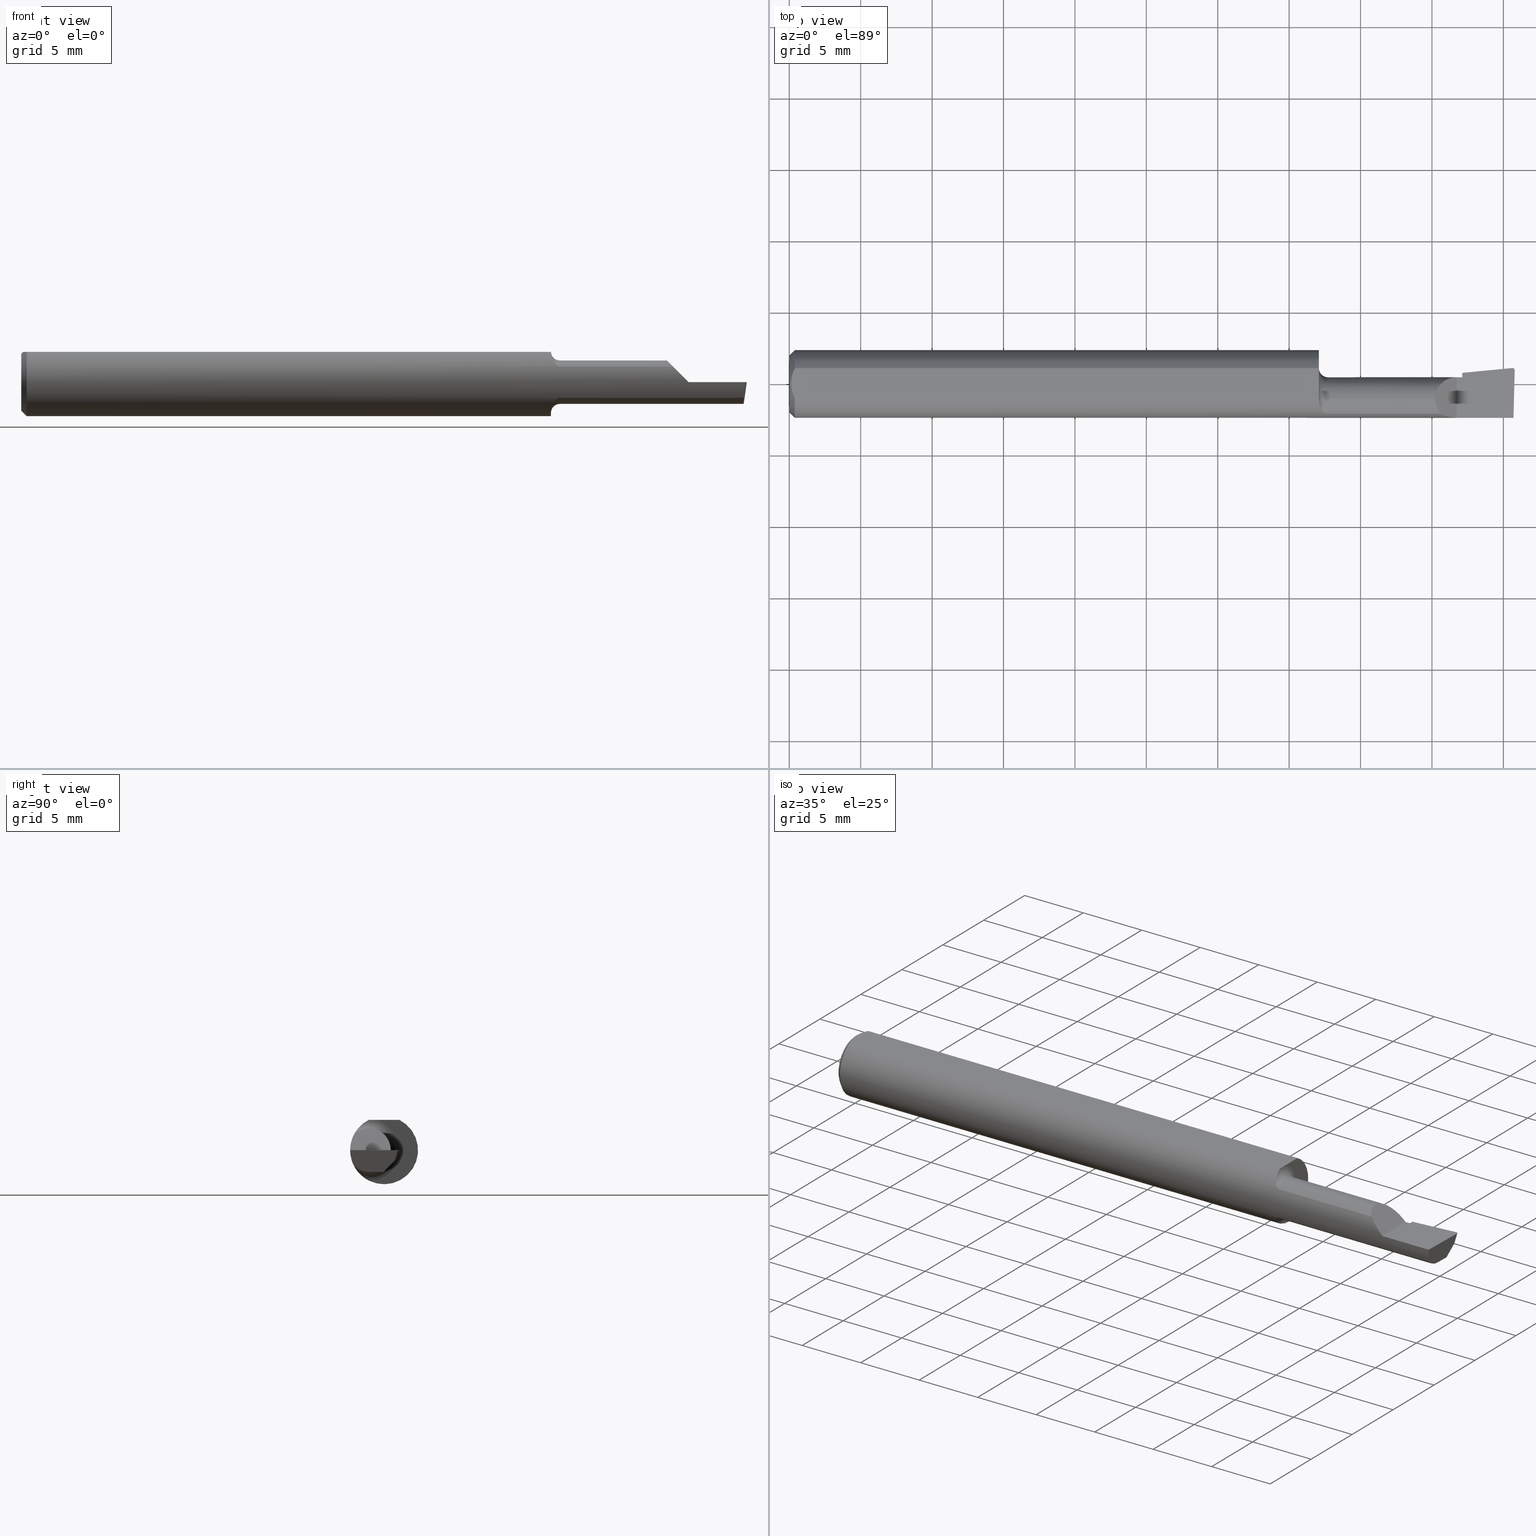
[diagram: canonical four-view strip — front | top / right | iso, engineering-drawing reading convention]
A machine part, canonical four-view strip (front | top / right | iso — engineering-drawing reading convention). The complete STEP part file that produces these views, byte-faithful:
ISO-10303-21;
HEADER;
FILE_DESCRIPTION (( 'STEP AP214' ),
    '1' );
FILE_NAME ('B140500R.STEP',
    '2020-05-08T22:40:26',
    ( '' ),
    ( '' ),
    'SwSTEP 2.0',
    'SolidWorks 2018',
    '' );
FILE_SCHEMA (( 'AUTOMOTIVE_DESIGN' ));
ENDSEC;

DATA;
#1 = EDGE_LOOP ( 'NONE', ( #714, #342, #424, #492 ) ) ;
#2 = CARTESIAN_POINT ( 'NONE',  ( 1.990393312970557327, -0.04150000000000000216, -0.05990000000000000185 ) ) ;
#3 = CARTESIAN_POINT ( 'NONE',  ( 0.005000000000000236026, 1.025183009042025117E-17, 0.08360000000000000764 ) ) ;
#4 = B_SPLINE_CURVE_WITH_KNOTS ( 'NONE', 3,
 ( #148, #225, #497, #697 ),
 .UNSPECIFIED., .F., .F.,
 ( 4, 4 ),
 ( 0.001735506710063806739, 0.001793010945052110183 ),
 .UNSPECIFIED. ) ;
#5 =( LENGTH_UNIT ( ) NAMED_UNIT ( * ) SI_UNIT ( $, .METRE. ) );
#6 = DIRECTION ( 'NONE',  ( 0.0000000000000000000, 0.0000000000000000000, 1.000000000000000000 ) ) ;
#7 = ORIENTED_EDGE ( 'NONE', *, *, #9, .F. ) ;
#8 = CARTESIAN_POINT ( 'NONE',  ( 0.0000000000000000000, 0.0000000000000000000, 0.0000000000000000000 ) ) ;
#9 = EDGE_CURVE ( 'NONE', #543, #617, #201, .T. ) ;
#10 = AXIS2_PLACEMENT_3D ( 'NONE', #421, #632, #232 ) ;
#11 = CARTESIAN_POINT ( 'NONE',  ( 1.990322576363892759, -0.07176861043311237587, -0.05402281578110740279 ) ) ;
#12 = ORIENTED_EDGE ( 'NONE', *, *, #633, .T. ) ;
#13 = EDGE_CURVE ( 'NONE', #182, #440, #228, .T. ) ;
#14 = CARTESIAN_POINT ( 'NONE',  ( 0.005000000000000228220, -0.007328888879231052964, 0.08360000000000000764 ) ) ;
#15 = CARTESIAN_POINT ( 'NONE',  ( 1.796877448822106649, -0.08307469879518074307, 0.04312255117789294545 ) ) ;
#16 = ORIENTED_EDGE ( 'NONE', *, *, #196, .F. ) ;
#17 = CARTESIAN_POINT ( 'NONE',  ( 1.840000000000000080, 0.01839999999999989908, 1.959434878635762025E-17 ) ) ;
#18 = DIRECTION ( 'NONE',  ( 0.0000000000000000000, 0.0000000000000000000, 1.000000000000000000 ) ) ;
#19 = CARTESIAN_POINT ( 'NONE',  ( 5.659797890829555466E-31, -0.09359999999999998876, 1.030335658007946046E-15 ) ) ;
#20 = DIRECTION ( 'NONE',  ( -0.0000000000000000000, 1.000000000000000000, 1.224646799147353207E-16 ) ) ;
#21 = TOROIDAL_SURFACE ( 'NONE', #486, 0.08489999999999996161, 0.02500000000000007425 ) ;
#22 = CARTESIAN_POINT ( 'NONE',  ( 0.01206089165507025739, -0.03555991978469312531, 0.08360000000000000764 ) ) ;
#23 =( LENGTH_UNIT ( ) NAMED_UNIT ( * ) SI_UNIT ( $, .METRE. ) );
#24 = FACE_OUTER_BOUND ( 'NONE', #572, .T. ) ;
#25 = APPLICATION_CONTEXT ( 'automotive_design' ) ;
#26 = ORIENTED_EDGE ( 'NONE', *, *, #412, .T. ) ;
#27 = UNCERTAINTY_MEASURE_WITH_UNIT (LENGTH_MEASURE( 1.000000000000000082E-05 ), #32, 'distance_accuracy_value', 'NONE');
#28 = VERTEX_POINT ( 'NONE', #280 ) ;
#29 = SURFACE_SIDE_STYLE ('',( #198 ) ) ;
#30 = VECTOR ( 'NONE', #584, 39.37007874015748854 ) ;
#31 = ORIENTED_EDGE ( 'NONE', *, *, #127, .F. ) ;
#32 =( CONVERSION_BASED_UNIT ( 'INCH', #86 ) LENGTH_UNIT ( ) NAMED_UNIT ( #266 ) );
#33 = ORIENTED_EDGE ( 'NONE', *, *, #196, .T. ) ;
#34 = AXIS2_PLACEMENT_3D ( 'NONE', #652, #301, #703 ) ;
#35 = AXIS2_PLACEMENT_3D ( 'NONE', #718, #236, #447 ) ;
#36 = FACE_OUTER_BOUND ( 'NONE', #1, .T. ) ;
#37 = DIRECTION ( 'NONE',  ( -1.000000000000000000, -0.0000000000000000000, -0.0000000000000000000 ) ) ;
#38 = ORIENTED_EDGE ( 'NONE', *, *, #723, .F. ) ;
#39 = ORIENTED_EDGE ( 'NONE', *, *, #465, .T. ) ;
#40 = EDGE_CURVE ( 'NONE', #133, #534, #540, .T. ) ;
#41 = CARTESIAN_POINT ( 'NONE',  ( 0.0000000000000000000, -0.04150000000000000216, 0.0000000000000000000 ) ) ;
#42 = CARTESIAN_POINT ( 'NONE',  ( 1.484999999999999876, -0.04149999999999998829, -0.08489999999999996161 ) ) ;
#43 = AXIS2_PLACEMENT_3D ( 'NONE', #111, #144, #268 ) ;
#44 = ADVANCED_FACE ( 'NONE', ( #97 ), #681, .T. ) ;
#45 = CARTESIAN_POINT ( 'NONE',  ( 1.854999999999999982, -0.2500000000000000555, 1.135460985248596835E-17 ) ) ;
#46 = CARTESIAN_POINT ( 'NONE',  ( 1.824917075065774830, -0.09360000000000001652, 0.01508292493422502302 ) ) ;
#47 = ORIENTED_EDGE ( 'NONE', *, *, #705, .F. ) ;
#48 = DIRECTION ( 'NONE',  ( 1.000000000000000000, 0.0000000000000000000, 0.0000000000000000000 ) ) ;
#49 = AXIS2_PLACEMENT_3D ( 'NONE', #586, #711, #662 ) ;
#50 = CARTESIAN_POINT ( 'NONE',  ( 0.005000000000000223883, 0.007308422719211823959, 0.08360000000000000764 ) ) ;
#51 = CARTESIAN_POINT ( 'NONE',  ( 1.484999999999999876, -0.08307469879518063205, 0.04312255117789300790 ) ) ;
#52 = COLOUR_RGB ( '',0.5019607843137254832, 0.5019607843137254832, 0.5019607843137254832 ) ;
#53 = ADVANCED_FACE ( 'NONE', ( #666 ), #246, .T. ) ;
#54 = VERTEX_POINT ( 'NONE', #675 ) ;
#55 = DIRECTION ( 'NONE',  ( 0.0000000000000000000, 0.0000000000000000000, 1.000000000000000000 ) ) ;
#56 =( CONVERSION_BASED_UNIT ( 'INCH', #157 ) LENGTH_UNIT ( ) NAMED_UNIT ( #389 ) );
#57 = AXIS2_PLACEMENT_3D ( 'NONE', #129, #444, #203 ) ;
#58 = CARTESIAN_POINT ( 'NONE',  ( 1.993310817358676212, 0.04374616680637213179, -6.832789351565719796E-17 ) ) ;
#59 = CARTESIAN_POINT ( 'NONE',  ( 1.460033804492674392, -0.04179756391332130339, 0.08360000000000000764 ) ) ;
#60 = ORIENTED_EDGE ( 'NONE', *, *, #429, .F. ) ;
#61 = VECTOR ( 'NONE', #321, 39.37007874015748143 ) ;
#62 = CARTESIAN_POINT ( 'NONE',  ( 0.005000000000000236026, 1.025183009042025117E-17, 0.08360000000000000764 ) ) ;
#63 = PLANE ( 'NONE',  #657 ) ;
#64 = DIRECTION ( 'NONE',  ( -1.000000000000000000, -0.0000000000000000000, -0.0000000000000000000 ) ) ;
#65 = DIRECTION ( 'NONE',  ( 0.0000000000000000000, 0.0000000000000000000, 1.000000000000000000 ) ) ;
#66 = ORIENTED_EDGE ( 'NONE', *, *, #215, .T. ) ;
#67 = SURFACE_STYLE_USAGE ( .BOTH. , #577 ) ;
#68 = ORIENTED_EDGE ( 'NONE', *, *, #155, .F. ) ;
#69 = CARTESIAN_POINT ( 'NONE',  ( 0.01203648650249650523, 0.03550565407121123590, 0.08360000000000000764 ) ) ;
#70 = DIRECTION ( 'NONE',  ( -5.493159289247764363E-16, 0.0000000000000000000, -1.000000000000000000 ) ) ;
#71 = CARTESIAN_POINT ( 'NONE',  ( 0.009492654797564337166, 0.02859466010166625619, 0.08359999999999997988 ) ) ;
#72 = DIRECTION ( 'NONE',  ( 0.9953961983671787417, 0.09584575252022466130, -5.467869873542577569E-16 ) ) ;
#73 = LINE ( 'NONE', #163, #90 ) ;
#74 = ORIENTED_EDGE ( 'NONE', *, *, #166, .F. ) ;
#75 = CIRCLE ( 'NONE', #94, 0.09360000000000001652 ) ;
#76 = EDGE_LOOP ( 'NONE', ( #158, #371, #190, #136, #597 ) ) ;
#77 = CARTESIAN_POINT ( 'NONE',  ( 0.01499999999999999598, 0.04209513035969837669, 0.08360000000000000764 ) ) ;
#78 = CARTESIAN_POINT ( 'NONE',  ( 1.990282674007080033, 0.03732143363315359313, -0.02000000000000000042 ) ) ;
#79 = EDGE_CURVE ( 'NONE', #565, #226, #490, .T. ) ;
#80 = CARTESIAN_POINT ( 'NONE',  ( 1.840000000000000080, -0.09360000000000005815, 1.959434878635762025E-17 ) ) ;
#81 = AXIS2_PLACEMENT_3D ( 'NONE', #324, #356, #218 ) ;
#82 = DIRECTION ( 'NONE',  ( 0.0000000000000000000, 0.6963153109074926572, 0.7177360153954946975 ) ) ;
#83 = PLANE ( 'NONE',  #293 ) ;
#84 =( BOUNDED_CURVE ( )  B_SPLINE_CURVE ( 3, ( #78, #292, #109, #445 ),
 .UNSPECIFIED., .F., .T. ) 
 B_SPLINE_CURVE_WITH_KNOTS ( ( 4, 4 ),
 ( 3.064097098354582105, 3.156599629463105128 ),
 .UNSPECIFIED. ) 
 CURVE ( )  GEOMETRIC_REPRESENTATION_ITEM ( )  RATIONAL_B_SPLINE_CURVE ( ( 1.000000000000000000, 0.9992870672494019724, 0.9992870672494019724, 1.000000000000000000 ) ) 
 REPRESENTATION_ITEM ( '' )  );
#85 = ORIENTED_EDGE ( 'NONE', *, *, #498, .T. ) ;
#86 = LENGTH_MEASURE_WITH_UNIT ( LENGTH_MEASURE( 0.02539999999999999897 ), #23 );
#87 = EDGE_LOOP ( 'NONE', ( #367, #601, #108 ) ) ;
#88 = EDGE_CURVE ( 'NONE', #334, #133, #205, .T. ) ;
#89 = EDGE_CURVE ( 'NONE', #570, #720, #432, .T. ) ;
#90 = VECTOR ( 'NONE', #503, 39.37007874015748143 ) ;
#91 = ORIENTED_EDGE ( 'NONE', *, *, #88, .F. ) ;
#92 = FACE_OUTER_BOUND ( 'NONE', #437, .T. ) ;
#93 = EDGE_LOOP ( 'NONE', ( #38, #74, #85, #145, #122 ) ) ;
#94 = AXIS2_PLACEMENT_3D ( 'NONE', #648, #455, #18 ) ;
#95 = CIRCLE ( 'NONE', #728, 0.05989999999999995328 ) ;
#96 = ADVANCED_FACE ( 'NONE', ( #214 ), #21, .F. ) ;
#97 = FACE_OUTER_BOUND ( 'NONE', #76, .T. ) ;
#98 = EDGE_CURVE ( 'NONE', #440, #153, #161, .T. ) ;
#99 = VERTEX_POINT ( 'NONE', #499 ) ;
#100 = ADVANCED_FACE ( 'NONE', ( #366 ), #311, .T. ) ;
#101 = CARTESIAN_POINT ( 'NONE',  ( 1.460033822879743592, -0.04149999999999999523, 0.08360000000000000764 ) ) ;
#102 = CARTESIAN_POINT ( 'NONE',  ( 0.0000000000000000000, 0.0000000000000000000, 0.0000000000000000000 ) ) ;
#103 = VERTEX_POINT ( 'NONE', #284 ) ;
#104 = DIRECTION ( 'NONE',  ( -1.000000000000000000, -0.0000000000000000000, -0.0000000000000000000 ) ) ;
#105 = ORIENTED_EDGE ( 'NONE', *, *, #169, .F. ) ;
#106 = CARTESIAN_POINT ( 'NONE',  ( 1.991365359011875169, -0.08307469879518077083, -0.04312255117789289688 ) ) ;
#107 = ORIENTED_EDGE ( 'NONE', *, *, #262, .T. ) ;
#108 = ORIENTED_EDGE ( 'NONE', *, *, #670, .T. ) ;
#109 = CARTESIAN_POINT ( 'NONE',  ( 1.990684883739910260, 0.03734591258203671243, -0.02001468779820768720 ) ) ;
#110 = CARTESIAN_POINT ( 'NONE',  ( 1.854999999999999982, 0.03726901833842542755, -0.006627062419125364159 ) ) ;
#111 = CARTESIAN_POINT ( 'NONE',  ( 0.0000000000000000000, 0.0000000000000000000, 0.0000000000000000000 ) ) ;
#112 = AXIS2_PLACEMENT_3D ( 'NONE', #338, #641, #395 ) ;
#113 = VERTEX_POINT ( 'NONE', #263 ) ;
#114 = CARTESIAN_POINT ( 'NONE',  ( 1.484999999999999876, -0.04149999999999999523, 0.0000000000000000000 ) ) ;
#115 = ORIENTED_EDGE ( 'NONE', *, *, #40, .T. ) ;
#116 =( BOUNDED_CURVE ( )  B_SPLINE_CURVE ( 3, ( #197, #699, #640, #682 ),
 .UNSPECIFIED., .F., .T. ) 
 B_SPLINE_CURVE_WITH_KNOTS ( ( 4, 4 ),
 ( 5.516060229395658432, 6.283185307179586232 ),
 .UNSPECIFIED. ) 
 CURVE ( )  GEOMETRIC_REPRESENTATION_ITEM ( )  RATIONAL_B_SPLINE_CURVE ( ( 1.000000000000000000, 0.9515582177473689285, 0.9515582177473689285, 1.000000000000000000 ) ) 
 REPRESENTATION_ITEM ( '' )  );
#117 = CARTESIAN_POINT ( 'NONE',  ( 1.669999999999999929, -0.08307469879518077083, 0.04312255117789289688 ) ) ;
#118 = VECTOR ( 'NONE', #650, 39.37007874015748143 ) ;
#119 = PLANE ( 'NONE',  #374 ) ;
#120 = VECTOR ( 'NONE', #562, 39.37007874015748143 ) ;
#121 = DIRECTION ( 'NONE',  ( -1.000000000000000000, -0.0000000000000000000, -0.0000000000000000000 ) ) ;
#122 = ORIENTED_EDGE ( 'NONE', *, *, #278, .T. ) ;
#123 = CARTESIAN_POINT ( 'NONE',  ( 2.000000000000000000, -0.04150000000000000216, -0.05990000000000000185 ) ) ;
#124 =( NAMED_UNIT ( * ) PLANE_ANGLE_UNIT ( ) SI_UNIT ( $, .RADIAN. ) );
#125 = CARTESIAN_POINT ( 'NONE',  ( 1.854999999999999982, 0.03043808801135671968, 0.0000000000000000000 ) ) ;
#126 = DIRECTION ( 'NONE',  ( 0.0000000000000000000, 0.0000000000000000000, -1.000000000000000000 ) ) ;
#127 = EDGE_CURVE ( 'NONE', #534, #513, #456, .T. ) ;
#128 = ORIENTED_EDGE ( 'NONE', *, *, #602, .T. ) ;
#129 = CARTESIAN_POINT ( 'NONE',  ( 1.840000000000000080, -0.2500000000000000555, 1.959434878635762025E-17 ) ) ;
#130 = DIRECTION ( 'NONE',  ( -1.000000000000000000, -0.0000000000000000000, -0.0000000000000000000 ) ) ;
#131 = PRESENTATION_STYLE_ASSIGNMENT (( #67 ) ) ;
#132 = CARTESIAN_POINT ( 'NONE',  ( 1.854999999999999982, -0.01441399783868786352, -0.05990000000000000185 ) ) ;
#133 = VERTEX_POINT ( 'NONE', #361 ) ;
#134 = DIRECTION ( 'NONE',  ( 0.0000000000000000000, 0.2936076258024065688, 0.9559260233253794592 ) ) ;
#135 = VERTEX_POINT ( 'NONE', #3 ) ;
#136 = ORIENTED_EDGE ( 'NONE', *, *, #615, .T. ) ;
#137 = CARTESIAN_POINT ( 'NONE',  ( 1.990707973439665102, 0.03071856456557511481, -0.01939893992993005009 ) ) ;
#138 = ORIENTED_EDGE ( 'NONE', *, *, #462, .F. ) ;
#139 = CARTESIAN_POINT ( 'NONE',  ( 1.810264301876177928, -0.09002356847881788637, 0.02973569812382168345 ) ) ;
#140 = CARTESIAN_POINT ( 'NONE',  ( 1.999806390372779408, 0.03700634663142104291, -6.825079363098308080E-17 ) ) ;
#141 = FILL_AREA_STYLE ('',( #529 ) ) ;
#142 = DIRECTION ( 'NONE',  ( -0.02617694830786378504, -0.9996573249755575929, 0.0000000000000000000 ) ) ;
#143 = VECTOR ( 'NONE', #177, 39.37007874015748143 ) ;
#144 = DIRECTION ( 'NONE',  ( -1.000000000000000000, -0.0000000000000000000, -0.0000000000000000000 ) ) ;
#145 = ORIENTED_EDGE ( 'NONE', *, *, #306, .T. ) ;
#146 = CARTESIAN_POINT ( 'NONE',  ( 1.460121283746727894, -0.04659318327468391779, -0.08137765652544189099 ) ) ;
#147 = EDGE_CURVE ( 'NONE', #411, #570, #659, .T. ) ;
#148 = CARTESIAN_POINT ( 'NONE',  ( 1.460020127471512996, -0.04149999999999998829, -0.08389702020930184245 ) ) ;
#149 = AXIS2_PLACEMENT_3D ( 'NONE', #8, #192, #527 ) ;
#150 = CIRCLE ( 'NONE', #35, 0.05990000000000000185 ) ;
#151 = ORIENTED_EDGE ( 'NONE', *, *, #215, .F. ) ;
#152 = EDGE_LOOP ( 'NONE', ( #575, #294, #171, #446 ) ) ;
#153 = VERTEX_POINT ( 'NONE', #726 ) ;
#154 = EDGE_CURVE ( 'NONE', #661, #133, #84, .T. ) ;
#155 = EDGE_CURVE ( 'NONE', #440, #277, #707, .T. ) ;
#156 = VECTOR ( 'NONE', #134, 39.37007874015748854 ) ;
#157 = LENGTH_MEASURE_WITH_UNIT ( LENGTH_MEASURE( 0.02539999999999999897 ), #5 );
#158 = ORIENTED_EDGE ( 'NONE', *, *, #147, .F. ) ;
#159 =( BOUNDED_CURVE ( )  B_SPLINE_CURVE ( 3, ( #353, #58, #176, #165 ),
 .UNSPECIFIED., .F., .T. ) 
 B_SPLINE_CURVE_WITH_KNOTS ( ( 4, 4 ),
 ( 3.511516179717707686, 3.604018710826265792 ),
 .UNSPECIFIED. ) 
 CURVE ( )  GEOMETRIC_REPRESENTATION_ITEM ( )  RATIONAL_B_SPLINE_CURVE ( ( 1.000000000000000000, 0.9992870672494014173, 0.9992870672494014173, 1.000000000000000000 ) ) 
 REPRESENTATION_ITEM ( '' )  );
#160 = DIRECTION ( 'NONE',  ( 1.000000000000000000, 0.0000000000000000000, 0.0000000000000000000 ) ) ;
#161 =( BOUNDED_CURVE ( )  B_SPLINE_CURVE ( 3, ( #80, #46, #139, #15 ),
 .UNSPECIFIED., .F., .T. ) 
 B_SPLINE_CURVE_WITH_KNOTS ( ( 4, 4 ),
 ( 4.712388980384689674, 5.191185112936687496 ),
 .UNSPECIFIED. ) 
 CURVE ( )  GEOMETRIC_REPRESENTATION_ITEM ( )  RATIONAL_B_SPLINE_CURVE ( ( 1.000000000000000000, 0.9809872534005956712, 0.9809872534005956712, 1.000000000000000000 ) ) 
 REPRESENTATION_ITEM ( '' )  );
#162 = LINE ( 'NONE', #110, #607 ) ;
#163 = CARTESIAN_POINT ( 'NONE',  ( 0.01499999999999999598, 1.146269404001922775E-17, 0.09360000000000001652 ) ) ;
#164 = ORIENTED_EDGE ( 'NONE', *, *, #473, .T. ) ;
#165 = CARTESIAN_POINT ( 'NONE',  ( 1.992906680581892465, 0.04371699102466924253, -6.439972649628884200E-17 ) ) ;
#166 = EDGE_CURVE ( 'NONE', #466, #656, #372, .T. ) ;
#167 = DIRECTION ( 'NONE',  ( 0.0000000000000000000, 0.0000000000000000000, 1.000000000000000000 ) ) ;
#168 = DIRECTION ( 'NONE',  ( 0.0000000000000000000, -1.189000693621284344E-16, -1.000000000000000000 ) ) ;
#169 = EDGE_CURVE ( 'NONE', #617, #226, #185, .T. ) ;
#170 = ADVANCED_FACE ( 'NONE', ( #403 ), #555, .F. ) ;
#171 = ORIENTED_EDGE ( 'NONE', *, *, #155, .T. ) ;
#172 = FACE_OUTER_BOUND ( 'NONE', #320, .T. ) ;
#173 = CARTESIAN_POINT ( 'NONE',  ( 0.0000000000000000000, 0.0000000000000000000, -0.07859999999999965625 ) ) ;
#174 = PLANE ( 'NONE',  #453 ) ;
#175 = FACE_OUTER_BOUND ( 'NONE', #250, .T. ) ;
#176 = CARTESIAN_POINT ( 'NONE',  ( 1.993108609909222784, 0.04373643460740115479, -6.821681774272507613E-17 ) ) ;
#177 = DIRECTION ( 'NONE',  ( -1.000000000000000000, -0.0000000000000000000, -0.0000000000000000000 ) ) ;
#178 = FACE_OUTER_BOUND ( 'NONE', #309, .T. ) ;
#179 = EDGE_CURVE ( 'NONE', #411, #639, #340, .T. ) ;
#180 = CARTESIAN_POINT ( 'NONE',  ( 1.460020127471512996, -0.04149999999999998829, -0.08389702020930184245 ) ) ;
#181 = CARTESIAN_POINT ( 'NONE',  ( 1.473672693420809310, -0.07917899622880057720, -0.04997532113045941721 ) ) ;
#182 = VERTEX_POINT ( 'NONE', #441 ) ;
#183 = PLANE ( 'NONE',  #149 ) ;
#184 = CARTESIAN_POINT ( 'NONE',  ( 1.484999999999999876, -0.04149999999999999523, 0.05989999999999996022 ) ) ;
#185 = CIRCLE ( 'NONE', #256, 0.05989999999999995328 ) ;
#186 = CIRCLE ( 'NONE', #249, 0.02500000000000007425 ) ;
#187 = DIRECTION ( 'NONE',  ( 1.000000000000000000, 0.0000000000000000000, 0.0000000000000000000 ) ) ;
#188 = CARTESIAN_POINT ( 'NONE',  ( 1.467169981117900202, -0.07201923175886887352, 0.06001882546782343064 ) ) ;
#189 = VECTOR ( 'NONE', #448, 39.37007874015748143 ) ;
#190 = ORIENTED_EDGE ( 'NONE', *, *, #544, .F. ) ;
#191 = CARTESIAN_POINT ( 'NONE',  ( 1.994533757673610408, -0.09360000000000001652, -0.01508292493422509241 ) ) ;
#192 = DIRECTION ( 'NONE',  ( 1.000000000000000000, 0.0000000000000000000, 0.0000000000000000000 ) ) ;
#193 = CARTESIAN_POINT ( 'NONE',  ( 1.990399895785905926, -0.04124861242399380928, -0.05990000000000000185 ) ) ;
#194 = ORIENTED_EDGE ( 'NONE', *, *, #723, .T. ) ;
#195 = CARTESIAN_POINT ( 'NONE',  ( 1.987092068405285739, 0.006017409096795581572, -0.09690769900911042067 ) ) ;
#196 = EDGE_CURVE ( 'NONE', #239, #103, #713, .T. ) ;
#197 = CARTESIAN_POINT ( 'NONE',  ( 1.796877448822106649, -0.08307469879518074307, 0.04312255117789294545 ) ) ;
#198 = SURFACE_STYLE_FILL_AREA ( #141 ) ;
#199 = CARTESIAN_POINT ( 'NONE',  ( 1.995722974169268138, 0.02705373335152997175, -0.03112352112763103543 ) ) ;
#200 = DIRECTION ( 'NONE',  ( 1.000000000000000000, 0.0000000000000000000, 0.0000000000000000000 ) ) ;
#201 = B_SPLINE_CURVE_WITH_KNOTS ( 'NONE', 3,
 ( #345, #385, #694, #612, #222, #188, #627, #507, #560, #692, #563, #51 ),
 .UNSPECIFIED., .F., .F.,
 ( 4, 2, 2, 2, 2, 4 ),
 ( 4.385794166508631868E-07, 0.0004249653867803444818, 0.0008494921941440384964, 0.001274019001507732457, 0.001486282405189579599, 0.001698545808871426525 ),
 .UNSPECIFIED. ) ;
#202 =( BOUNDED_CURVE ( )  B_SPLINE_CURVE ( 3, ( #350, #244, #610, #279 ),
 .UNSPECIFIED., .F., .T. ) 
 B_SPLINE_CURVE_WITH_KNOTS ( ( 4, 4 ),
 ( 1.953092279228458406, 3.511516179717707686 ),
 .UNSPECIFIED. ) 
 CURVE ( )  GEOMETRIC_REPRESENTATION_ITEM ( )  RATIONAL_B_SPLINE_CURVE ( ( 1.000000000000000000, 0.8076450242550430314, 0.8076450242550430314, 1.000000000000000000 ) ) 
 REPRESENTATION_ITEM ( '' )  );
#203 = DIRECTION ( 'NONE',  ( -0.7071067811865516806, 0.0000000000000000000, 0.7071067811865433539 ) ) ;
#204 = ORIENTED_EDGE ( 'NONE', *, *, #415, .F. ) ;
#205 = LINE ( 'NONE', #471, #414 ) ;
#206 = LINE ( 'NONE', #531, #189 ) ;
#207 = ORIENTED_EDGE ( 'NONE', *, *, #473, .F. ) ;
#208 = EDGE_CURVE ( 'NONE', #99, #661, #354, .T. ) ;
#209 = ORIENTED_EDGE ( 'NONE', *, *, #615, .F. ) ;
#210 = CIRCLE ( 'NONE', #370, 0.08489999999999996161 ) ;
#211 = ORIENTED_EDGE ( 'NONE', *, *, #415, .T. ) ;
#212 = EDGE_CURVE ( 'NONE', #54, #661, #297, .T. ) ;
#213 = EDGE_LOOP ( 'NONE', ( #26, #454, #380, #559, #514, #667, #68, #402 ) ) ;
#214 = FACE_OUTER_BOUND ( 'NONE', #606, .T. ) ;
#215 = EDGE_CURVE ( 'NONE', #656, #466, #622, .T. ) ;
#216 = ADVANCED_FACE ( 'NONE', ( #484 ), #252, .F. ) ;
#217 = EDGE_LOOP ( 'NONE', ( #128, #467, #459, #598, #265, #660 ) ) ;
#218 = DIRECTION ( 'NONE',  ( 0.0000000000000000000, 0.0000000000000000000, -1.000000000000000000 ) ) ;
#219 = CARTESIAN_POINT ( 'NONE',  ( 1.840000000000000080, -0.2500000000000000555, 1.959434878635762025E-17 ) ) ;
#220 = ADVANCED_FACE ( 'NONE', ( #416 ), #585, .T. ) ;
#221 = CARTESIAN_POINT ( 'NONE',  ( 1.469237437666585544, -0.07513599091569017618, -0.05602756047418827601 ) ) ;
#222 = CARTESIAN_POINT ( 'NONE',  ( 1.463721006865827512, -0.06478644025684782148, 0.06776242552123264151 ) ) ;
#223 = CARTESIAN_POINT ( 'NONE',  ( 1.780099999999999349, -0.04150000000000000216, 0.05989999999999998104 ) ) ;
#224 = ORIENTED_EDGE ( 'NONE', *, *, #237, .T. ) ;
#225 = CARTESIAN_POINT ( 'NONE',  ( 1.460006719116742291, -0.04082489400077269487, -0.08423096411932438909 ) ) ;
#226 = VERTEX_POINT ( 'NONE', #184 ) ;
#227 = CARTESIAN_POINT ( 'NONE',  ( 1.996386342823452065, -0.09360000000000009979, -6.634435288474567089E-17 ) ) ;
#228 = LINE ( 'NONE', #19, #364 ) ;
#229 = DIRECTION ( 'NONE',  ( -1.000000000000000000, -0.0000000000000000000, -0.0000000000000000000 ) ) ;
#230 = CARTESIAN_POINT ( 'NONE',  ( 1.484999999999999876, -0.04149999999999998829, -0.05989999999999996022 ) ) ;
#231 = ORIENTED_EDGE ( 'NONE', *, *, #510, .F. ) ;
#232 = DIRECTION ( 'NONE',  ( 0.0000000000000000000, -0.2936076258024065688, -0.9559260233253794592 ) ) ;
#233 =( NAMED_UNIT ( * ) SI_UNIT ( $, .STERADIAN. ) SOLID_ANGLE_UNIT ( ) );
#234 = CARTESIAN_POINT ( 'NONE',  ( 1.484999999999999876, -0.04150000000000000216, 0.0000000000000000000 ) ) ;
#235 = ORIENTED_EDGE ( 'NONE', *, *, #428, .F. ) ;
#236 = DIRECTION ( 'NONE',  ( -1.000000000000000000, -0.0000000000000000000, -0.0000000000000000000 ) ) ;
#237 = EDGE_CURVE ( 'NONE', #153, #565, #116, .T. ) ;
#238 = DIRECTION ( 'NONE',  ( 0.0000000000000000000, 0.0000000000000000000, -1.000000000000000000 ) ) ;
#239 = VERTEX_POINT ( 'NONE', #77 ) ;
#240 = CARTESIAN_POINT ( 'NONE',  ( 1.840000000000000080, -0.09360000000000005815, 1.959434878635762025E-17 ) ) ;
#241 = DIRECTION ( 'NONE',  ( -1.000000000000000000, -0.0000000000000000000, -0.0000000000000000000 ) ) ;
#242 = B_SPLINE_CURVE_WITH_KNOTS ( 'NONE', 3,
 ( #101, #394, #59, #377, #328 ),
 .UNSPECIFIED., .F., .F.,
 ( 4, 1, 4 ),
 ( 0.001137327269498854482, 0.001144877036798491645, 0.001152426804098129025 ),
 .UNSPECIFIED. ) ;
#243 = CARTESIAN_POINT ( 'NONE',  ( 1.484999999999999876, -0.04150000000000000216, 0.0000000000000000000 ) ) ;
#244 = CARTESIAN_POINT ( 'NONE',  ( 1.999910038027503001, 0.04096449087509793086, -7.195295054753363913E-17 ) ) ;
#245 = CARTESIAN_POINT ( 'NONE',  ( 1.991365359011875169, -0.08307469879518077083, -0.04312255117789289688 ) ) ;
#246 = CYLINDRICAL_SURFACE ( 'NONE', #551, 0.05989999999999998104 ) ;
#247 = EDGE_CURVE ( 'NONE', #334, #54, #159, .T. ) ;
#248 = CYLINDRICAL_SURFACE ( 'NONE', #34, 0.006499999999999999702 ) ;
#249 = AXIS2_PLACEMENT_3D ( 'NONE', #42, #20, #408 ) ;
#250 = EDGE_LOOP ( 'NONE', ( #91, #47, #207, #481 ) ) ;
#251 = ORIENTED_EDGE ( 'NONE', *, *, #429, .T. ) ;
#252 = TOROIDAL_SURFACE ( 'NONE', #426, 0.08489999999999996161, 0.02500000000000007425 ) ;
#253 =( BOUNDED_CURVE ( )  B_SPLINE_CURVE ( 3, ( #223, #715, #518, #17 ),
 .UNSPECIFIED., .F., .F. ) 
 B_SPLINE_CURVE_WITH_KNOTS ( ( 4, 4 ),
 ( 0.0000000000000000000, 1.570796326794896558 ),
 .UNSPECIFIED. ) 
 CURVE ( )  GEOMETRIC_REPRESENTATION_ITEM ( )  RATIONAL_B_SPLINE_CURVE ( ( 1.000000000000000000, 0.8047378541243649375, 0.8047378541243649375, 1.000000000000000000 ) ) 
 REPRESENTATION_ITEM ( '' )  );
#254 = ORIENTED_EDGE ( 'NONE', *, *, #179, .F. ) ;
#255 = EDGE_CURVE ( 'NONE', #135, #239, #305, .T. ) ;
#256 = AXIS2_PLACEMENT_3D ( 'NONE', #243, #104, #167 ) ;
#257 = ADVANCED_FACE ( 'NONE', ( #578 ), #463, .T. ) ;
#258 = ADVANCED_FACE ( 'NONE', ( #483 ), #83, .F. ) ;
#259 = ORIENTED_EDGE ( 'NONE', *, *, #255, .F. ) ;
#260 = ORIENTED_EDGE ( 'NONE', *, *, #498, .F. ) ;
#261 = CARTESIAN_POINT ( 'NONE',  ( 1.484999999999999876, -0.08307469879518099287, -0.04312255117789264708 ) ) ;
#262 = EDGE_CURVE ( 'NONE', #427, #433, #547, .T. ) ;
#263 = CARTESIAN_POINT ( 'NONE',  ( 1.460033822879743592, -0.04149999999999999523, 0.08360000000000000764 ) ) ;
#264 = CARTESIAN_POINT ( 'NONE',  ( 1.459999999999999742, 0.1436000000000000332, 0.08359999999999999376 ) ) ;
#265 = ORIENTED_EDGE ( 'NONE', *, *, #595, .T. ) ;
#266 = DIMENSIONAL_EXPONENTS ( 1.000000000000000000, 0.0000000000000000000, 0.0000000000000000000, 0.0000000000000000000, 0.0000000000000000000, 0.0000000000000000000, 0.0000000000000000000 ) ;
#267 = CARTESIAN_POINT ( 'NONE',  ( 0.0000000000000000000, 0.04209513035969837669, 0.08360000000000000764 ) ) ;
#268 = DIRECTION ( 'NONE',  ( 0.0000000000000000000, 0.0000000000000000000, 1.000000000000000000 ) ) ;
#269 = CARTESIAN_POINT ( 'NONE',  ( 1.459999999999999964, -0.02916612216505919120, 0.08360000000000000764 ) ) ;
#270 = ORIENTED_EDGE ( 'NONE', *, *, #449, .F. ) ;
#271 = DIRECTION ( 'NONE',  ( -0.1053106618241658743, -0.6976485211320175850, -0.7086580314005231918 ) ) ;
#272 = CARTESIAN_POINT ( 'NONE',  ( 1.669999999999999929, -0.08307469879518077083, -0.04312255117789289688 ) ) ;
#273 = PRODUCT_DEFINITION_SHAPE ( 'NONE', 'NONE',  #300 ) ;
#274 = CONICAL_SURFACE ( 'NONE', #663, 0.09360000000000001652, 0.7853981633974601584 ) ;
#275 = VECTOR ( 'NONE', #581, 39.37007874015748143 ) ;
#276 =( LENGTH_UNIT ( ) NAMED_UNIT ( * ) SI_UNIT ( $, .METRE. ) );
#277 = VERTEX_POINT ( 'NONE', #341 ) ;
#278 = EDGE_CURVE ( 'NONE', #474, #135, #690, .T. ) ;
#279 = CARTESIAN_POINT ( 'NONE',  ( 1.993512870449313912, 0.04374616680637214566, -7.256471233170699482E-17 ) ) ;
#280 = CARTESIAN_POINT ( 'NONE',  ( 1.459999999999999742, -0.02669966216601827105, 0.08360000000000000764 ) ) ;
#281 = DIRECTION ( 'NONE',  ( 1.000000000000000000, 0.0000000000000000000, 0.0000000000000000000 ) ) ;
#282 = COLOUR_RGB ( '',0.5019607843137254832, 0.5019607843137254832, 0.5019607843137254832 ) ;
#283 = CARTESIAN_POINT ( 'NONE',  ( 1.854999999999999982, 0.01840000000000001010, 1.030335658007946637E-15 ) ) ;
#284 = CARTESIAN_POINT ( 'NONE',  ( 0.01499999999999999598, 0.0000000000000000000, -0.09360000000000001652 ) ) ;
#285 = ORIENTED_EDGE ( 'NONE', *, *, #169, .T. ) ;
#286 = DIRECTION ( 'NONE',  ( -1.000000000000000000, -0.0000000000000000000, -0.0000000000000000000 ) ) ;
#287 = EDGE_LOOP ( 'NONE', ( #235, #691, #400, #259, #553, #60, #489 ) ) ;
#288 = CARTESIAN_POINT ( 'NONE',  ( 0.01499999999999999598, 0.0000000000000000000, 0.0000000000000000000 ) ) ;
#289 = DIRECTION ( 'NONE',  ( -1.000000000000000000, -0.0000000000000000000, -0.0000000000000000000 ) ) ;
#290 =( CONVERSION_BASED_UNIT ( 'INCH', #317 ) LENGTH_UNIT ( ) NAMED_UNIT ( #318 ) );
#291 = CARTESIAN_POINT ( 'NONE',  ( 1.990112198071334326, 0.03690592833625450792, -0.02129935601062778183 ) ) ;
#292 = CARTESIAN_POINT ( 'NONE',  ( 1.990484603334409908, 0.03734087721588534581, -0.02000000000000003511 ) ) ;
#293 = AXIS2_PLACEMENT_3D ( 'NONE', #123, #348, #200 ) ;
#294 = ORIENTED_EDGE ( 'NONE', *, *, #98, .F. ) ;
#295 = DIRECTION ( 'NONE',  ( -1.000000000000000000, -0.0000000000000000000, -0.0000000000000000000 ) ) ;
#296 = DIRECTION ( 'NONE',  ( -1.000000000000000000, -0.0000000000000000000, -0.0000000000000000000 ) ) ;
#297 = LINE ( 'NONE', #291, #729 ) ;
#298 = CARTESIAN_POINT ( 'NONE',  ( 1.854999999999999982, -0.04150000000000000216, -0.05990000000000000185 ) ) ;
#299 = LINE ( 'NONE', #450, #626 ) ;
#300 = PRODUCT_DEFINITION ( 'UNKNOWN', '', #357, #461 ) ;
#301 = DIRECTION ( 'NONE',  ( -0.1240019227989198058, -0.3022330132596643404, -0.9451342385281333858 ) ) ;
#302 =( BOUNDED_CURVE ( )  B_SPLINE_CURVE ( 3, ( #245, #491, #191, #227 ),
 .UNSPECIFIED., .F., .F. ) 
 B_SPLINE_CURVE_WITH_KNOTS ( ( 4, 4 ),
 ( 0.8819507499627845526, 1.360746882514781042 ),
 .UNSPECIFIED. ) 
 CURVE ( )  GEOMETRIC_REPRESENTATION_ITEM ( )  RATIONAL_B_SPLINE_CURVE ( ( 1.000000000000000000, 0.9809872534005956712, 0.9809872534005956712, 1.000000000000000000 ) ) 
 REPRESENTATION_ITEM ( '' )  );
#303 = ORIENTED_EDGE ( 'NONE', *, *, #485, .F. ) ;
#304 = EDGE_LOOP ( 'NONE', ( #224, #596, #105, #387 ) ) ;
#305 = B_SPLINE_CURVE_WITH_KNOTS ( 'NONE', 3,
 ( #360, #50, #517, #71, #69, #520 ),
 .UNSPECIFIED., .F., .F.,
 ( 4, 2, 4 ),
 ( 0.006881281100865560205, 0.007427683811376459971, 0.007974086521887359738 ),
 .UNSPECIFIED. ) ;
#306 = EDGE_CURVE ( 'NONE', #103, #474, #75, .T. ) ;
#307 = EDGE_CURVE ( 'NONE', #239, #363, #589, .T. ) ;
#308 = ORIENTED_EDGE ( 'NONE', *, *, #154, .T. ) ;
#309 = EDGE_LOOP ( 'NONE', ( #611, #308, #115, #554, #423, #502 ) ) ;
#310 = PRODUCT_RELATED_PRODUCT_CATEGORY ( 'part', '', ( #592 ) ) ;
#311 = CYLINDRICAL_SURFACE ( 'NONE', #314, 0.05989999999999998104 ) ;
#312 = CYLINDRICAL_SURFACE ( 'NONE', #419, 0.006499999999999999702 ) ;
#313 = EDGE_CURVE ( 'NONE', #99, #433, #557, .T. ) ;
#314 = AXIS2_PLACEMENT_3D ( 'NONE', #464, #289, #410 ) ;
#315 = ORIENTED_EDGE ( 'NONE', *, *, #347, .T. ) ;
#316 = AXIS2_PLACEMENT_3D ( 'NONE', #362, #689, #55 ) ;
#317 = LENGTH_MEASURE_WITH_UNIT ( LENGTH_MEASURE( 0.02539999999999999897 ), #276 );
#318 = DIMENSIONAL_EXPONENTS ( 1.000000000000000000, 0.0000000000000000000, 0.0000000000000000000, 0.0000000000000000000, 0.0000000000000000000, 0.0000000000000000000, 0.0000000000000000000 ) ;
#319 = VECTOR ( 'NONE', #48, 39.37007874015748143 ) ;
#320 = EDGE_LOOP ( 'NONE', ( #209, #382, #631, #665, #231, #7, #251, #369, #16, #654, #270, #204, #431 ) ) ;
#321 = DIRECTION ( 'NONE',  ( 0.7071067811865391350, 0.0000000000000000000, -0.7071067811865558994 ) ) ;
#322 = CARTESIAN_POINT ( 'NONE',  ( 1.462355770679723665, -0.06040702343486043652, -0.07171535245186137775 ) ) ;
#323 = DIRECTION ( 'NONE',  ( -1.000000000000000000, 0.0000000000000000000, 5.493159289247764363E-16 ) ) ;
#324 = CARTESIAN_POINT ( 'NONE',  ( 0.01499999999999999598, 0.0000000000000000000, 0.0000000000000000000 ) ) ;
#325 = EDGE_LOOP ( 'NONE', ( #542, #706, #519, #582 ) ) ;
#326 = CARTESIAN_POINT ( 'NONE',  ( 1.460027419345086841, -0.03656676420729535609, 0.08359999999999997988 ) ) ;
#327 = CONICAL_SURFACE ( 'NONE', #81, 0.09360000000000001652, 0.7853981633974601584 ) ;
#328 = CARTESIAN_POINT ( 'NONE',  ( 1.460033712670300021, -0.04209513035969835587, 0.08360000000000000764 ) ) ;
#329 = ADVANCED_FACE ( 'NONE', ( #92 ), #274, .T. ) ;
#330 = AXIS2_PLACEMENT_3D ( 'NONE', #346, #442, #126 ) ;
#331 = CARTESIAN_POINT ( 'NONE',  ( 1.460010473476444526, -0.03163306423249834243, 0.08360000000000000764 ) ) ;
#332 = CARTESIAN_POINT ( 'NONE',  ( 0.01499999999999999598, 0.0000000000000000000, -0.09360000000000001652 ) ) ;
#333 = FILL_AREA_STYLE_COLOUR ( '', #282 ) ;
#334 = VERTEX_POINT ( 'NONE', #526 ) ;
#335 = CARTESIAN_POINT ( 'NONE',  ( 1.995722974169268138, 0.02705373335152997175, -0.03112352112763103543 ) ) ;
#336 = UNCERTAINTY_MEASURE_WITH_UNIT (LENGTH_MEASURE( 1.000000000000000082E-05 ), #56, 'distance_accuracy_value', 'NONE');
#337 = CARTESIAN_POINT ( 'NONE',  ( 1.854999999999999982, 0.03043808801135919340, 1.030335791302337039E-15 ) ) ;
#338 = CARTESIAN_POINT ( 'NONE',  ( 0.0000000000000000000, -0.04150000000000000216, 0.0000000000000000000 ) ) ;
#339 = DIRECTION ( 'NONE',  ( -0.1240019227989198058, -0.3022330132596643404, -0.9451342385281333858 ) ) ;
#340 = LINE ( 'NONE', #616, #651 ) ;
#341 = CARTESIAN_POINT ( 'NONE',  ( 1.840000000000000080, 0.01839999999999989908, 1.959434878635762025E-17 ) ) ;
#342 = ORIENTED_EDGE ( 'NONE', *, *, #88, .T. ) ;
#343 =( NAMED_UNIT ( * ) PLANE_ANGLE_UNIT ( ) SI_UNIT ( $, .RADIAN. ) );
#344 = CARTESIAN_POINT ( 'NONE',  ( 1.460604804002112456, -0.05145819953596714874, -0.07838465384289881877 ) ) ;
#345 = CARTESIAN_POINT ( 'NONE',  ( 1.460033712670300021, -0.04209513035969835587, 0.08360000000000000764 ) ) ;
#346 = CARTESIAN_POINT ( 'NONE',  ( 1.484999999999999876, -0.04149999999999999523, 0.08489999999999996161 ) ) ;
#347 = EDGE_CURVE ( 'NONE', #720, #696, #469, .T. ) ;
#348 = DIRECTION ( 'NONE',  ( -0.0000000000000000000, 0.0000000000000000000, 1.000000000000000000 ) ) ;
#349 = CLOSED_SHELL ( 'NONE', ( #550, #53, #100, #392, #96, #329, #487, #546, #170, #378, #603, #619, #216, #220, #257, #44, #258, #436, #443, #677, #376 ) ) ;
#350 = CARTESIAN_POINT ( 'NONE',  ( 1.999806390372779408, 0.03700634663142104291, -6.825079363098308080E-17 ) ) ;
#351 = EDGE_CURVE ( 'NONE', #639, #99, #162, .T. ) ;
#352 = APPLICATION_PROTOCOL_DEFINITION ( 'draft international standard', 'automotive_design', 1998, #599 ) ;
#353 = CARTESIAN_POINT ( 'NONE',  ( 1.993512870449313912, 0.04374616680637214566, -7.256471233170699482E-17 ) ) ;
#354 = LINE ( 'NONE', #574, #568 ) ;
#355 = ORIENTED_EDGE ( 'NONE', *, *, #583, .T. ) ;
#356 = DIRECTION ( 'NONE',  ( 1.000000000000000000, 0.0000000000000000000, 0.0000000000000000000 ) ) ;
#357 = PRODUCT_DEFINITION_FORMATION_WITH_SPECIFIED_SOURCE ( 'ANY', '', #592, .NOT_KNOWN. ) ;
#358 = VECTOR ( 'NONE', #229, 39.37007874015748143 ) ;
#359 = LINE ( 'NONE', #195, #591 ) ;
#360 = CARTESIAN_POINT ( 'NONE',  ( 0.005000000000000236026, 1.025183009042025117E-17, 0.08360000000000000764 ) ) ;
#361 = CARTESIAN_POINT ( 'NONE',  ( 1.990883086864199569, 0.03733652896197534043, -0.02004403198038587700 ) ) ;
#362 = CARTESIAN_POINT ( 'NONE',  ( 0.0000000000000000000, 0.0000000000000000000, 0.0000000000000000000 ) ) ;
#363 = VERTEX_POINT ( 'NONE', #704 ) ;
#364 = VECTOR ( 'NONE', #296, 39.37007874015748143 ) ;
#365 = LINE ( 'NONE', #264, #118 ) ;
#366 = FACE_OUTER_BOUND ( 'NONE', #304, .T. ) ;
#367 = ORIENTED_EDGE ( 'NONE', *, *, #449, .T. ) ;
#368 = AXIS2_PLACEMENT_3D ( 'NONE', #501, #295, #468 ) ;
#369 = ORIENTED_EDGE ( 'NONE', *, *, #306, .F. ) ;
#370 = AXIS2_PLACEMENT_3D ( 'NONE', #457, #605, #381 ) ;
#371 = ORIENTED_EDGE ( 'NONE', *, *, #388, .F. ) ;
#372 = CIRCLE ( 'NONE', #43, 0.07859999999999965625 ) ;
#373 = ORIENTED_EDGE ( 'NONE', *, *, #89, .T. ) ;
#374 = AXIS2_PLACEMENT_3D ( 'NONE', #686, #561, #521 ) ;
#375 = VECTOR ( 'NONE', #286, 39.37007874015748143 ) ;
#376 = ADVANCED_FACE ( 'NONE', ( #175 ), #248, .T. ) ;
#377 = CARTESIAN_POINT ( 'NONE',  ( 1.460033749376515422, -0.04199594133387063444, 0.08360000000000003539 ) ) ;
#378 = ADVANCED_FACE ( 'NONE', ( #685 ), #535, .F. ) ;
#379 = CARTESIAN_POINT ( 'NONE',  ( 1.459999999999999742, 0.0000000000000000000, 0.0000000000000000000 ) ) ;
#380 = ORIENTED_EDGE ( 'NONE', *, *, #247, .T. ) ;
#381 = DIRECTION ( 'NONE',  ( 0.0000000000000000000, 0.0000000000000000000, 1.000000000000000000 ) ) ;
#382 = ORIENTED_EDGE ( 'NONE', *, *, #462, .T. ) ;
#383 = CARTESIAN_POINT ( 'NONE',  ( 0.0000000000000000000, -0.04209513035969835587, 0.08360000000000000764 ) ) ;
#384 = EDGE_CURVE ( 'NONE', #513, #719, #712, .T. ) ;
#385 = CARTESIAN_POINT ( 'NONE',  ( 1.460163936266268614, -0.04714148439307228738, 0.08105900800387486060 ) ) ;
#386 = FACE_OUTER_BOUND ( 'NONE', #287, .T. ) ;
#387 = ORIENTED_EDGE ( 'NONE', *, *, #510, .T. ) ;
#388 = EDGE_CURVE ( 'NONE', #719, #411, #206, .T. ) ;
#389 = DIMENSIONAL_EXPONENTS ( 1.000000000000000000, 0.0000000000000000000, 0.0000000000000000000, 0.0000000000000000000, 0.0000000000000000000, 0.0000000000000000000, 0.0000000000000000000 ) ;
#390 = DIRECTION ( 'NONE',  ( 0.9953961983671800740, 0.09584575252021028391, -0.0000000000000000000 ) ) ;
#391 = CARTESIAN_POINT ( 'NONE',  ( 1.460033822879743592, -0.04149999999999999523, 0.08360000000000000764 ) ) ;
#392 = ADVANCED_FACE ( 'NONE', ( #638 ), #479, .F. ) ;
#393 = CARTESIAN_POINT ( 'NONE',  ( 1.460033822879743814, -0.03903342675892660513, 0.08360000000000000764 ) ) ;
#394 = CARTESIAN_POINT ( 'NONE',  ( 1.460033822879743370, -0.04159918775969437960, 0.08360000000000000764 ) ) ;
#395 = DIRECTION ( 'NONE',  ( 0.0000000000000000000, 0.0000000000000000000, 1.000000000000000000 ) ) ;
#396 = CARTESIAN_POINT ( 'NONE',  ( 2.000000000000000000, 0.1436000000000000332, 0.08359999999999999376 ) ) ;
#397 = CARTESIAN_POINT ( 'NONE',  ( 1.990883086864199569, 0.03733652896197534043, -0.02004403198038587700 ) ) ;
#398 = CARTESIAN_POINT ( 'NONE',  ( 1.988104162047463319, -0.07253870183878463607, -0.07191998023054105293 ) ) ;
#399 = CARTESIAN_POINT ( 'NONE',  ( 0.01499999999999999944, -0.04209513035969835587, 0.08360000000000000764 ) ) ;
#400 = ORIENTED_EDGE ( 'NONE', *, *, #307, .F. ) ;
#401 = CARTESIAN_POINT ( 'NONE',  ( 5.659797890829555466E-31, 0.01839999999999996499, 1.030335658007946046E-15 ) ) ;
#402 = ORIENTED_EDGE ( 'NONE', *, *, #13, .F. ) ;
#403 = FACE_OUTER_BOUND ( 'NONE', #213, .T. ) ;
#404 = EDGE_LOOP ( 'NONE', ( #31, #164, #541, #138, #673, #538 ) ) ;
#405 = DIRECTION ( 'NONE',  ( -1.000000000000000000, -0.0000000000000000000, -0.0000000000000000000 ) ) ;
#406 = LINE ( 'NONE', #629, #30 ) ;
#407 = ORIENTED_EDGE ( 'NONE', *, *, #212, .T. ) ;
#408 = DIRECTION ( 'NONE',  ( 0.0000000000000000000, 0.0000000000000000000, 1.000000000000000000 ) ) ;
#409 = DIRECTION ( 'NONE',  ( 0.0000000000000000000, 1.000000000000000000, 0.0000000000000000000 ) ) ;
#410 = DIRECTION ( 'NONE',  ( 0.0000000000000000000, 0.0000000000000000000, 1.000000000000000000 ) ) ;
#411 = VERTEX_POINT ( 'NONE', #298 ) ;
#412 = EDGE_CURVE ( 'NONE', #182, #525, #406, .T. ) ;
#413 = CARTESIAN_POINT ( 'NONE',  ( 1.459999999999999742, 0.04339999999999995250, 0.0000000000000000000 ) ) ;
#414 = VECTOR ( 'NONE', #494, 39.37007874015748854 ) ;
#415 = EDGE_CURVE ( 'NONE', #696, #418, #4, .T. ) ;
#416 = FACE_OUTER_BOUND ( 'NONE', #87, .T. ) ;
#417 = CARTESIAN_POINT ( 'NONE',  ( 1.459999999999999742, -0.03946024096385552377, -0.08487549341873930342 ) ) ;
#418 = VERTEX_POINT ( 'NONE', #417 ) ;
#419 = AXIS2_PLACEMENT_3D ( 'NONE', #137, #339, #435 ) ;
#420 = CIRCLE ( 'NONE', #678, 0.09360000000000001652 ) ;
#421 = CARTESIAN_POINT ( 'NONE',  ( 1.845713589253086706, 0.02954390835936730741, -6.829619984160658046E-17 ) ) ;
#422 = PRODUCT_CONTEXT ( 'NONE', #599, 'mechanical' ) ;
#423 = ORIENTED_EDGE ( 'NONE', *, *, #600, .F. ) ;
#424 = ORIENTED_EDGE ( 'NONE', *, *, #154, .F. ) ;
#425 = ORIENTED_EDGE ( 'NONE', *, *, #602, .F. ) ;
#426 = AXIS2_PLACEMENT_3D ( 'NONE', #114, #405, #590 ) ;
#427 = VERTEX_POINT ( 'NONE', #283 ) ;
#428 = EDGE_CURVE ( 'NONE', #28, #113, #452, .T. ) ;
#429 = EDGE_CURVE ( 'NONE', #543, #474, #709, .T. ) ;
#430 =( NAMED_UNIT ( * ) SI_UNIT ( $, .STERADIAN. ) SOLID_ANGLE_UNIT ( ) );
#431 = ORIENTED_EDGE ( 'NONE', *, *, #347, .F. ) ;
#432 = CIRCLE ( 'NONE', #434, 0.05989999999999995328 ) ;
#433 = VERTEX_POINT ( 'NONE', #337 ) ;
#434 = AXIS2_PLACEMENT_3D ( 'NONE', #234, #241, #65 ) ;
#435 = DIRECTION ( 'NONE',  ( 0.0000000000000000000, 0.9524855432518773979, -0.3045837978228257970 ) ) ;
#436 = ADVANCED_FACE ( 'NONE', ( #24 ), #614, .F. ) ;
#437 = EDGE_LOOP ( 'NONE', ( #151, #194, #477, #33, #260 ) ) ;
#438 = FILL_AREA_STYLE ('',( #333 ) ) ;
#439 = CARTESIAN_POINT ( 'NONE',  ( 0.0000000000000000000, -0.04150000000000000216, 0.05989999999999998104 ) ) ;
#440 = VERTEX_POINT ( 'NONE', #240 ) ;
#441 = CARTESIAN_POINT ( 'NONE',  ( 1.996386342823452065, -0.09360000000000009979, -6.634435288474567089E-17 ) ) ;
#442 = DIRECTION ( 'NONE',  ( 0.0000000000000000000, -1.000000000000000000, 0.0000000000000000000 ) ) ;
#443 = ADVANCED_FACE ( 'NONE', ( #178 ), #119, .F. ) ;
#444 = DIRECTION ( 'NONE',  ( -0.7071067811865433539, 0.0000000000000000000, -0.7071067811865516806 ) ) ;
#445 = CARTESIAN_POINT ( 'NONE',  ( 1.990883086864199569, 0.03733652896197534043, -0.02004403198038587700 ) ) ;
#446 = ORIENTED_EDGE ( 'NONE', *, *, #595, .F. ) ;
#447 = DIRECTION ( 'NONE',  ( 0.0000000000000000000, 0.0000000000000000000, 1.000000000000000000 ) ) ;
#448 = DIRECTION ( 'NONE',  ( -1.000000000000000000, 5.691349986800549142E-18, -0.0000000000000000000 ) ) ;
#449 = EDGE_CURVE ( 'NONE', #418, #363, #420, .T. ) ;
#450 = CARTESIAN_POINT ( 'NONE',  ( 1.107894390816139163, -0.04150000000000000216, 4.217516215662293437E-16 ) ) ;
#451 = DIRECTION ( 'NONE',  ( -1.000000000000000000, 0.0000000000000000000, -0.0000000000000000000 ) ) ;
#452 = B_SPLINE_CURVE_WITH_KNOTS ( 'NONE', 3,
 ( #730, #269, #331, #326, #393, #391 ),
 .UNSPECIFIED., .F., .F.,
 ( 4, 2, 4 ),
 ( 0.0007618363005527832924, 0.0009495817850258188872, 0.001137327269498854482 ),
 .UNSPECIFIED. ) ;
#453 = AXIS2_PLACEMENT_3D ( 'NONE', #396, #168, #623 ) ;
#454 = ORIENTED_EDGE ( 'NONE', *, *, #705, .T. ) ;
#455 = DIRECTION ( 'NONE',  ( -1.000000000000000000, -0.0000000000000000000, -0.0000000000000000000 ) ) ;
#456 = LINE ( 'NONE', #698, #634 ) ;
#457 = CARTESIAN_POINT ( 'NONE',  ( 1.459999999999999742, -0.04150000000000000216, 0.0000000000000000000 ) ) ;
#458 = CYLINDRICAL_SURFACE ( 'NONE', #558, 0.09360000000000001652 ) ;
#459 = ORIENTED_EDGE ( 'NONE', *, *, #633, .F. ) ;
#460 = CARTESIAN_POINT ( 'NONE',  ( 0.0000000000000000000, 1.054420894065869177E-17, 0.07859999999999965625 ) ) ;
#461 = PRODUCT_DEFINITION_CONTEXT ( 'detailed design', #25, 'design' ) ;
#462 = EDGE_CURVE ( 'NONE', #500, #182, #302, .T. ) ;
#463 = PLANE ( 'NONE',  #636 ) ;
#464 = CARTESIAN_POINT ( 'NONE',  ( 0.0000000000000000000, -0.04150000000000000216, 0.0000000000000000000 ) ) ;
#465 = EDGE_CURVE ( 'NONE', #433, #54, #299, .T. ) ;
#466 = VERTEX_POINT ( 'NONE', #173 ) ;
#467 = ORIENTED_EDGE ( 'NONE', *, *, #147, .T. ) ;
#468 = DIRECTION ( 'NONE',  ( 0.0000000000000000000, 0.0000000000000000000, 1.000000000000000000 ) ) ;
#469 = B_SPLINE_CURVE_WITH_KNOTS ( 'NONE', 3,
 ( #261, #655, #643, #509, #181, #221, #472, #470, #322, #344, #146, #528 ),
 .UNSPECIFIED., .F., .F.,
 ( 4, 2, 2, 2, 2, 4 ),
 ( 1.963546462201886234E-07, 0.0002171101490734183095, 0.0004340239435006164629, 0.0008678515323550130408, 0.001301679121209409727, 0.001735506710063806739 ),
 .UNSPECIFIED. ) ;
#470 = CARTESIAN_POINT ( 'NONE',  ( 1.463605992736884298, -0.06448586599545334808, -0.06805619079784636094 ) ) ;
#471 = CARTESIAN_POINT ( 'NONE',  ( 1.990707973439665102, 0.03690972059671231847, -0.02137873461577841777 ) ) ;
#472 = CARTESIAN_POINT ( 'NONE',  ( 1.467076397983111180, -0.07187891021191496199, -0.06019546731975675136 ) ) ;
#473 = EDGE_CURVE ( 'NONE', #534, #525, #359, .T. ) ;
#474 = VERTEX_POINT ( 'NONE', #515 ) ;
#475 = EDGE_CURVE ( 'NONE', #363, #28, #365, .T. ) ;
#476 = AXIS2_PLACEMENT_3D ( 'NONE', #413, #187, #580 ) ;
#477 = ORIENTED_EDGE ( 'NONE', *, *, #255, .T. ) ;
#478 = LINE ( 'NONE', #117, #319 ) ;
#479 = TOROIDAL_SURFACE ( 'NONE', #368, 0.08489999999999996161, 0.02500000000000007425 ) ;
#480 = ORIENTED_EDGE ( 'NONE', *, *, #313, .F. ) ;
#481 = ORIENTED_EDGE ( 'NONE', *, *, #40, .F. ) ;
#482 = FACE_OUTER_BOUND ( 'NONE', #404, .T. ) ;
#483 = FACE_OUTER_BOUND ( 'NONE', #325, .T. ) ;
#484 = FACE_OUTER_BOUND ( 'NONE', #545, .T. ) ;
#485 = EDGE_CURVE ( 'NONE', #113, #226, #508, .T. ) ;
#486 = AXIS2_PLACEMENT_3D ( 'NONE', #721, #130, #6 ) ;
#487 = ADVANCED_FACE ( 'NONE', ( #172 ), #458, .T. ) ;
#488 =( GEOMETRIC_REPRESENTATION_CONTEXT ( 3 ) GLOBAL_UNCERTAINTY_ASSIGNED_CONTEXT ( ( #27 ) ) GLOBAL_UNIT_ASSIGNED_CONTEXT ( ( #32, #537, #430 ) ) REPRESENTATION_CONTEXT ( 'NONE', 'WORKASPACE' ) );
#489 = ORIENTED_EDGE ( 'NONE', *, *, #583, .F. ) ;
#490 = LINE ( 'NONE', #439, #143 ) ;
#491 = CARTESIAN_POINT ( 'NONE',  ( 1.992827658777091893, -0.09002356847881787250, -0.02973569812382169039 ) ) ;
#492 = ORIENTED_EDGE ( 'NONE', *, *, #212, .F. ) ;
#493 = CARTESIAN_POINT ( 'NONE',  ( 0.009539353699420832430, -0.02875682547511371895, 0.08360000000000000764 ) ) ;
#494 = DIRECTION ( 'NONE',  ( -0.1240019227989197920, -0.3022330132596642849, -0.9451342385281331637 ) ) ;
#495 =( NAMED_UNIT ( * ) SI_UNIT ( $, .STERADIAN. ) SOLID_ANGLE_UNIT ( ) );
#496 = LINE ( 'NONE', #332, #61 ) ;
#497 = CARTESIAN_POINT ( 'NONE',  ( 1.459999999999999742, -0.04014498638740778003, -0.08455714216888013390 ) ) ;
#498 = EDGE_CURVE ( 'NONE', #466, #103, #496, .T. ) ;
#499 = CARTESIAN_POINT ( 'NONE',  ( 1.854999999999999982, 0.02429519371539582209, -0.02000000000000000042 ) ) ;
#500 = VERTEX_POINT ( 'NONE', #106 ) ;
#501 = CARTESIAN_POINT ( 'NONE',  ( 1.484999999999999876, -0.04149999999999999523, 0.0000000000000000000 ) ) ;
#502 = ORIENTED_EDGE ( 'NONE', *, *, #351, .T. ) ;
#503 = DIRECTION ( 'NONE',  ( 0.7071067811865391350, 8.659560562355035164E-17, 0.7071067811865558994 ) ) ;
#504 = MECHANICAL_DESIGN_GEOMETRIC_PRESENTATION_REPRESENTATION (  '', ( #533 ), #488 ) ;
#505 = CARTESIAN_POINT ( 'NONE',  ( 0.01499999999999999598, 0.0000000000000000000, 0.0000000000000000000 ) ) ;
#506 = CARTESIAN_POINT ( 'NONE',  ( 1.990393312970557327, -0.04150000000000000216, -0.05990000000000000185 ) ) ;
#507 = CARTESIAN_POINT ( 'NONE',  ( 1.473723886093657010, -0.07921817987507924486, 0.04991299092652128067 ) ) ;
#508 = CIRCLE ( 'NONE', #330, 0.02500000000000007425 ) ;
#509 = CARTESIAN_POINT ( 'NONE',  ( 1.475354605856553647, -0.08039319987159071479, -0.04797642756495484884 ) ) ;
#510 = EDGE_CURVE ( 'NONE', #617, #153, #478, .T. ) ;
#511 = CARTESIAN_POINT ( 'NONE',  ( 1.991365359011875169, -0.08307469879518077083, -0.04312255117789289688 ) ) ;
#512 = EDGE_CURVE ( 'NONE', #696, #570, #186, .T. ) ;
#513 = VERTEX_POINT ( 'NONE', #556 ) ;
#514 = ORIENTED_EDGE ( 'NONE', *, *, #262, .F. ) ;
#515 = CARTESIAN_POINT ( 'NONE',  ( 0.01499999999999999944, -0.04209513035969835587, 0.08360000000000000764 ) ) ;
#516 = PRESENTATION_LAYER_ASSIGNMENT (  '', '', ( #533 ) ) ;
#517 = CARTESIAN_POINT ( 'NONE',  ( 0.005981829149300850468, 0.01454044632356567279, 0.08360000000000000764 ) ) ;
#518 = CARTESIAN_POINT ( 'NONE',  ( 1.804911392386147506, 0.01839999999999997540, 0.03508860761385160232 ) ) ;
#519 = ORIENTED_EDGE ( 'NONE', *, *, #388, .T. ) ;
#520 = CARTESIAN_POINT ( 'NONE',  ( 0.01499999999999999598, 0.04209513035969837669, 0.08360000000000000764 ) ) ;
#521 = DIRECTION ( 'NONE',  ( 0.0000000000000000000, -0.6963153109074926572, -0.7177360153954946975 ) ) ;
#522 = LINE ( 'NONE', #401, #548 ) ;
#523 = CARTESIAN_POINT ( 'NONE',  ( 0.005975039161239525769, -0.01453776427033148279, 0.08359999999999997988 ) ) ;
#524 = CARTESIAN_POINT ( 'NONE',  ( 2.000000000000000000, -0.2500000000000000555, -6.829619984160658046E-17 ) ) ;
#525 = VERTEX_POINT ( 'NONE', #140 ) ;
#526 = CARTESIAN_POINT ( 'NONE',  ( 1.993512870449313912, 0.04374616680637214566, -7.256471233170699482E-17 ) ) ;
#527 = DIRECTION ( 'NONE',  ( 0.0000000000000000000, 0.0000000000000000000, -1.000000000000000000 ) ) ;
#528 = CARTESIAN_POINT ( 'NONE',  ( 1.460020127471512996, -0.04149999999999998829, -0.08389702020930184245 ) ) ;
#529 = FILL_AREA_STYLE_COLOUR ( '', #52 ) ;
#530 = LINE ( 'NONE', #272, #375 ) ;
#531 = CARTESIAN_POINT ( 'NONE',  ( 2.000000000000000000, -0.04150000000000000216, -0.05990000000000000185 ) ) ;
#532 = SURFACE_STYLE_USAGE ( .BOTH. , #29 ) ;
#533 = STYLED_ITEM ( 'NONE', ( #683 ), #688 ) ;
#534 = VERTEX_POINT ( 'NONE', #335 ) ;
#535 = PLANE ( 'NONE',  #57 ) ;
#536 = ORIENTED_EDGE ( 'NONE', *, *, #313, .T. ) ;
#537 =( NAMED_UNIT ( * ) PLANE_ANGLE_UNIT ( ) SI_UNIT ( $, .RADIAN. ) );
#538 = ORIENTED_EDGE ( 'NONE', *, *, #384, .F. ) ;
#539 = APPLICATION_PROTOCOL_DEFINITION ( 'draft international standard', 'automotive_design', 1998, #25 ) ;
#540 =( BOUNDED_CURVE ( )  B_SPLINE_CURVE ( 3, ( #397, #672, #687, #199 ),
 .UNSPECIFIED., .F., .T. ) 
 B_SPLINE_CURVE_WITH_KNOTS ( ( 4, 4 ),
 ( 3.156599629463105128, 4.715023529952366843 ),
 .UNSPECIFIED. ) 
 CURVE ( )  GEOMETRIC_REPRESENTATION_ITEM ( )  RATIONAL_B_SPLINE_CURVE ( ( 1.000000000000000000, 0.8076450242550402558, 0.8076450242550402558, 1.000000000000000000 ) ) 
 REPRESENTATION_ITEM ( '' )  );
#541 = ORIENTED_EDGE ( 'NONE', *, *, #412, .F. ) ;
#542 = ORIENTED_EDGE ( 'NONE', *, *, #600, .T. ) ;
#543 = VERTEX_POINT ( 'NONE', #642 ) ;
#544 = EDGE_CURVE ( 'NONE', #500, #719, #635, .T. ) ;
#545 = EDGE_LOOP ( 'NONE', ( #303, #355, #695, #285 ) ) ;
#546 = ADVANCED_FACE ( 'NONE', ( #386 ), #174, .F. ) ;
#547 = LINE ( 'NONE', #45, #621 ) ;
#548 = VECTOR ( 'NONE', #552, 39.37007874015748143 ) ;
#549 = EDGE_CURVE ( 'NONE', #277, #427, #522, .T. ) ;
#550 = ADVANCED_FACE ( 'NONE', ( #36 ), #312, .T. ) ;
#551 = AXIS2_PLACEMENT_3D ( 'NONE', #41, #649, #576 ) ;
#552 = DIRECTION ( 'NONE',  ( 1.000000000000000000, 0.0000000000000000000, 0.0000000000000000000 ) ) ;
#553 = ORIENTED_EDGE ( 'NONE', *, *, #278, .F. ) ;
#554 = ORIENTED_EDGE ( 'NONE', *, *, #127, .T. ) ;
#555 = PLANE ( 'NONE',  #653 ) ;
#556 = CARTESIAN_POINT ( 'NONE',  ( 1.991446623798936333, -0.001275682303322558248, -0.05990000000000000185 ) ) ;
#557 = LINE ( 'NONE', #625, #156 ) ;
#558 = AXIS2_PLACEMENT_3D ( 'NONE', #102, #121, #724 ) ;
#559 = ORIENTED_EDGE ( 'NONE', *, *, #465, .F. ) ;
#560 = CARTESIAN_POINT ( 'NONE',  ( 1.475413575230741570, -0.08042664989321215985, 0.04791921015141201862 ) ) ;
#561 = DIRECTION ( 'NONE',  ( 0.06894566448119619773, -0.7160281025913033393, 0.6946583704589935904 ) ) ;
#562 = DIRECTION ( 'NONE',  ( 1.000000000000000000, 0.0000000000000000000, 0.0000000000000000000 ) ) ;
#563 = CARTESIAN_POINT ( 'NONE',  ( 1.482123707331537643, -0.08307469879541821978, 0.04312255117743567928 ) ) ;
#564 = CARTESIAN_POINT ( 'NONE',  ( 1.989982066092358393, -0.05720488466914005338, -0.05989999999999997410 ) ) ;
#565 = VERTEX_POINT ( 'NONE', #645 ) ;
#566 = DIRECTION ( 'NONE',  ( 0.0000000000000000000, 0.0000000000000000000, -1.000000000000000000 ) ) ;
#567 = DIRECTION ( 'NONE',  ( 0.0000000000000000000, 0.0000000000000000000, 1.000000000000000000 ) ) ;
#568 = VECTOR ( 'NONE', #390, 39.37007874015748854 ) ;
#569 = DIRECTION ( 'NONE',  ( -0.1240019227989197920, -0.3022330132596642849, -0.9451342385281331637 ) ) ;
#570 = VERTEX_POINT ( 'NONE', #230 ) ;
#571 = DIRECTION ( 'NONE',  ( 0.1240019227989197920, 0.3022330132596642849, 0.9451342385281331637 ) ) ;
#572 = EDGE_LOOP ( 'NONE', ( #39, #407, #664, #536 ) ) ;
#573 = SURFACE_STYLE_FILL_AREA ( #438 ) ;
#574 = CARTESIAN_POINT ( 'NONE',  ( 1.846299648997745013, 0.02345744519840431766, -0.02000000000000000042 ) ) ;
#575 = ORIENTED_EDGE ( 'NONE', *, *, #237, .F. ) ;
#576 = DIRECTION ( 'NONE',  ( 0.0000000000000000000, 0.0000000000000000000, 1.000000000000000000 ) ) ;
#577 = SURFACE_SIDE_STYLE ('',( #573 ) ) ;
#578 = FACE_OUTER_BOUND ( 'NONE', #679, .T. ) ;
#579 = ORIENTED_EDGE ( 'NONE', *, *, #512, .T. ) ;
#580 = DIRECTION ( 'NONE',  ( 0.0000000000000000000, 0.0000000000000000000, -1.000000000000000000 ) ) ;
#581 = DIRECTION ( 'NONE',  ( -1.000000000000000000, -0.0000000000000000000, -0.0000000000000000000 ) ) ;
#582 = ORIENTED_EDGE ( 'NONE', *, *, #179, .T. ) ;
#583 = EDGE_CURVE ( 'NONE', #113, #543, #242, .T. ) ;
#584 = DIRECTION ( 'NONE',  ( 0.02617694830786378504, 0.9996573249755575929, -1.459184416195593542E-17 ) ) ;
#585 = PLANE ( 'NONE',  #476 ) ;
#586 = CARTESIAN_POINT ( 'NONE',  ( 0.0000000000000000000, 0.0000000000000000000, 0.0000000000000000000 ) ) ;
#587 =( GEOMETRIC_REPRESENTATION_CONTEXT ( 3 ) GLOBAL_UNCERTAINTY_ASSIGNED_CONTEXT ( ( #588 ) ) GLOBAL_UNIT_ASSIGNED_CONTEXT ( ( #290, #343, #495 ) ) REPRESENTATION_CONTEXT ( 'NONE', 'WORKASPACE' ) );
#588 = UNCERTAINTY_MEASURE_WITH_UNIT (LENGTH_MEASURE( 1.000000000000000082E-05 ), #290, 'distance_accuracy_value', 'NONE');
#589 = LINE ( 'NONE', #267, #120 ) ;
#590 = DIRECTION ( 'NONE',  ( 0.0000000000000000000, 0.0000000000000000000, 1.000000000000000000 ) ) ;
#591 = VECTOR ( 'NONE', #571, 39.37007874015748854 ) ;
#592 = PRODUCT ( 'B140500R', 'B140500R', '', ( #422 ) ) ;
#593 = FACE_OUTER_BOUND ( 'NONE', #594, .T. ) ;
#594 = EDGE_LOOP ( 'NONE', ( #646, #66 ) ) ;
#595 = EDGE_CURVE ( 'NONE', #565, #277, #253, .T. ) ;
#596 = ORIENTED_EDGE ( 'NONE', *, *, #79, .T. ) ;
#597 = ORIENTED_EDGE ( 'NONE', *, *, #89, .F. ) ;
#598 = ORIENTED_EDGE ( 'NONE', *, *, #79, .F. ) ;
#599 = APPLICATION_CONTEXT ( 'automotive_design' ) ;
#600 = EDGE_CURVE ( 'NONE', #639, #513, #628, .T. ) ;
#601 = ORIENTED_EDGE ( 'NONE', *, *, #475, .T. ) ;
#602 = EDGE_CURVE ( 'NONE', #427, #411, #150, .T. ) ;
#603 = ADVANCED_FACE ( 'NONE', ( #593 ), #183, .F. ) ;
#604 =( GEOMETRIC_REPRESENTATION_CONTEXT ( 3 ) GLOBAL_UNCERTAINTY_ASSIGNED_CONTEXT ( ( #336 ) ) GLOBAL_UNIT_ASSIGNED_CONTEXT ( ( #56, #124, #233 ) ) REPRESENTATION_CONTEXT ( 'NONE', 'WORKASPACE' ) );
#605 = DIRECTION ( 'NONE',  ( -1.000000000000000000, -0.0000000000000000000, -0.0000000000000000000 ) ) ;
#606 = EDGE_LOOP ( 'NONE', ( #710, #211, #700, #609, #618, #12 ) ) ;
#607 = VECTOR ( 'NONE', #82, 39.37007874015748143 ) ;
#608 = VECTOR ( 'NONE', #684, 39.37007874015748143 ) ;
#609 = ORIENTED_EDGE ( 'NONE', *, *, #428, .T. ) ;
#610 = CARTESIAN_POINT ( 'NONE',  ( 1.997312560284823402, 0.04374616680637223587, -7.052611464845214313E-17 ) ) ;
#611 = ORIENTED_EDGE ( 'NONE', *, *, #208, .T. ) ;
#612 = CARTESIAN_POINT ( 'NONE',  ( 1.462429122971264706, -0.06066239981255451552, 0.07149394324265896661 ) ) ;
#613 = DIRECTION ( 'NONE',  ( -0.9922060308645496152, 0.02598182930468405372, 0.1218693434051347224 ) ) ;
#614 = PLANE ( 'NONE',  #10 ) ;
#615 = EDGE_CURVE ( 'NONE', #500, #720, #530, .T. ) ;
#616 = CARTESIAN_POINT ( 'NONE',  ( 1.854999999999999982, -0.04150000000000000216, -0.05990000000000000185 ) ) ;
#617 = VERTEX_POINT ( 'NONE', #727 ) ;
#618 = ORIENTED_EDGE ( 'NONE', *, *, #485, .T. ) ;
#619 = ADVANCED_FACE ( 'NONE', ( #701 ), #327, .T. ) ;
#620 = CARTESIAN_POINT ( 'NONE',  ( 0.0000000000000000000, -0.04149999999999999523, -0.05989999999999998104 ) ) ;
#621 = VECTOR ( 'NONE', #409, 39.37007874015748143 ) ;
#622 = CIRCLE ( 'NONE', #316, 0.07859999999999965625 ) ;
#623 = DIRECTION ( 'NONE',  ( 0.0000000000000000000, 1.000000000000000000, -1.189000693621284344E-16 ) ) ;
#624 = MECHANICAL_DESIGN_GEOMETRIC_PRESENTATION_REPRESENTATION (  '', ( #702 ), #604 ) ;
#625 = CARTESIAN_POINT ( 'NONE',  ( 1.854999999999999982, 0.03043808801135869033, -6.049254294211750709E-16 ) ) ;
#626 = VECTOR ( 'NONE', #72, 39.37007874015748143 ) ;
#627 = CARTESIAN_POINT ( 'NONE',  ( 1.469277238843510247, -0.07518688180261751119, 0.05595855205958086970 ) ) ;
#628 = LINE ( 'NONE', #668, #716 ) ;
#629 = CARTESIAN_POINT ( 'NONE',  ( 1.992296147241039872, -0.2497982675158734178, -6.406435080701882457E-17 ) ) ;
#630 = DIRECTION ( 'NONE',  ( 0.1219104985252700973, 0.0000000000000000000, 0.9925410975618692566 ) ) ;
#631 = ORIENTED_EDGE ( 'NONE', *, *, #13, .T. ) ;
#632 = DIRECTION ( 'NONE',  ( 0.09165774897393337561, -0.9519021185660612172, 0.2923717047227308297 ) ) ;
#633 = EDGE_CURVE ( 'NONE', #226, #570, #95, .T. ) ;
#634 = VECTOR ( 'NONE', #271, 39.37007874015748854 ) ;
#635 =( BOUNDED_CURVE ( )  B_SPLINE_CURVE ( 3, ( #511, #11, #564, #2 ),
 .UNSPECIFIED., .F., .T. ) 
 B_SPLINE_CURVE_WITH_KNOTS ( ( 4, 4 ),
 ( 5.726109673675772171, 6.493234751459700860 ),
 .UNSPECIFIED. ) 
 CURVE ( )  GEOMETRIC_REPRESENTATION_ITEM ( )  RATIONAL_B_SPLINE_CURVE ( ( 1.000000000000000000, 0.9515582177473689285, 0.9515582177473689285, 1.000000000000000000 ) ) 
 REPRESENTATION_ITEM ( '' )  );
#636 = AXIS2_PLACEMENT_3D ( 'NONE', #125, #451, #725 ) ;
#637 = SHAPE_DEFINITION_REPRESENTATION ( #273, #688 ) ;
#638 = FACE_OUTER_BOUND ( 'NONE', #693, .T. ) ;
#639 = VERTEX_POINT ( 'NONE', #132 ) ;
#640 = CARTESIAN_POINT ( 'NONE',  ( 1.780099999999999349, -0.05720488466914004644, 0.05989999999999997410 ) ) ;
#641 = DIRECTION ( 'NONE',  ( -1.000000000000000000, -0.0000000000000000000, -0.0000000000000000000 ) ) ;
#642 = CARTESIAN_POINT ( 'NONE',  ( 1.460033712670300021, -0.04209513035969835587, 0.08360000000000000764 ) ) ;
#643 = CARTESIAN_POINT ( 'NONE',  ( 1.479498465877714164, -0.08233174416856400835, -0.04456779206614370353 ) ) ;
#644 = DIRECTION ( 'NONE',  ( 0.0000000000000000000, 1.000000000000000000, 0.0000000000000000000 ) ) ;
#645 = CARTESIAN_POINT ( 'NONE',  ( 1.780099999999999349, -0.04150000000000000216, 0.05989999999999998104 ) ) ;
#646 = ORIENTED_EDGE ( 'NONE', *, *, #166, .T. ) ;
#647 = PRESENTATION_LAYER_ASSIGNMENT (  '', '', ( #702 ) ) ;
#648 = CARTESIAN_POINT ( 'NONE',  ( 0.01499999999999999598, 0.0000000000000000000, 0.0000000000000000000 ) ) ;
#649 = DIRECTION ( 'NONE',  ( -1.000000000000000000, -0.0000000000000000000, -0.0000000000000000000 ) ) ;
#650 = DIRECTION ( 'NONE',  ( 0.0000000000000000000, -1.000000000000000000, 1.189000693621284344E-16 ) ) ;
#651 = VECTOR ( 'NONE', #644, 39.37007874015748143 ) ;
#652 = CARTESIAN_POINT ( 'NONE',  ( 1.990707973439665102, 0.03071856456557511481, -0.01939893992993005009 ) ) ;
#653 = AXIS2_PLACEMENT_3D ( 'NONE', #524, #70, #323 ) ;
#654 = ORIENTED_EDGE ( 'NONE', *, *, #307, .T. ) ;
#655 = CARTESIAN_POINT ( 'NONE',  ( 1.482100790213034092, -0.08307469879518092348, -0.04312255117789265402 ) ) ;
#656 = VERTEX_POINT ( 'NONE', #460 ) ;
#657 = AXIS2_PLACEMENT_3D ( 'NONE', #398, #613, #630 ) ;
#658 = VECTOR ( 'NONE', #142, 39.37007874015748854 ) ;
#659 = LINE ( 'NONE', #620, #275 ) ;
#660 = ORIENTED_EDGE ( 'NONE', *, *, #549, .T. ) ;
#661 = VERTEX_POINT ( 'NONE', #671 ) ;
#662 = DIRECTION ( 'NONE',  ( 1.000000000000000000, 0.0000000000000000000, 0.0000000000000000000 ) ) ;
#663 = AXIS2_PLACEMENT_3D ( 'NONE', #505, #281, #566 ) ;
#664 = ORIENTED_EDGE ( 'NONE', *, *, #208, .F. ) ;
#665 = ORIENTED_EDGE ( 'NONE', *, *, #98, .T. ) ;
#666 = FACE_OUTER_BOUND ( 'NONE', #217, .T. ) ;
#667 = ORIENTED_EDGE ( 'NONE', *, *, #549, .F. ) ;
#668 = CARTESIAN_POINT ( 'NONE',  ( 1.996083844369372917, -0.0008291687483132236967, -0.05990000000000000185 ) ) ;
#669 = AXIS2_PLACEMENT_3D ( 'NONE', #288, #64, #722 ) ;
#670 = EDGE_CURVE ( 'NONE', #28, #418, #210, .T. ) ;
#671 = CARTESIAN_POINT ( 'NONE',  ( 1.990282674007080033, 0.03732143363315359313, -0.02000000000000000042 ) ) ;
#672 = CARTESIAN_POINT ( 'NONE',  ( 1.994610376530254969, 0.03716006620332604898, -0.02059586115756896138 ) ) ;
#673 = ORIENTED_EDGE ( 'NONE', *, *, #544, .T. ) ;
#674 = DIRECTION ( 'NONE',  ( 0.9953961983671800740, 0.09584575252021028391, 0.0000000000000000000 ) ) ;
#675 = CARTESIAN_POINT ( 'NONE',  ( 1.992906680581892465, 0.04371699102466924253, -6.439972649628884200E-17 ) ) ;
#676 = CARTESIAN_POINT ( 'NONE',  ( 1.484999999999999876, -0.08307469879518099287, -0.04312255117789264708 ) ) ;
#677 = ADVANCED_FACE ( 'NONE', ( #482 ), #63, .F. ) ;
#678 = AXIS2_PLACEMENT_3D ( 'NONE', #379, #160, #238 ) ;
#679 = EDGE_LOOP ( 'NONE', ( #708, #254, #425, #107, #480 ) ) ;
#680 = CARTESIAN_POINT ( 'NONE',  ( 1.484999999999999876, -0.04150000000000000216, 0.0000000000000000000 ) ) ;
#681 = CYLINDRICAL_SURFACE ( 'NONE', #112, 0.05989999999999998104 ) ;
#682 = CARTESIAN_POINT ( 'NONE',  ( 1.780099999999999349, -0.04150000000000000216, 0.05989999999999998104 ) ) ;
#683 = PRESENTATION_STYLE_ASSIGNMENT (( #532 ) ) ;
#684 = DIRECTION ( 'NONE',  ( -0.0000000000000000000, 1.000000000000000000, -0.0000000000000000000 ) ) ;
#685 = FACE_OUTER_BOUND ( 'NONE', #152, .T. ) ;
#686 = CARTESIAN_POINT ( 'NONE',  ( 1.846299648997745013, 0.02345744519840431766, -0.02000000000000000042 ) ) ;
#687 = CARTESIAN_POINT ( 'NONE',  ( 1.996607907276938931, 0.03291612433050056241, -0.02516861643763553674 ) ) ;
#688 = ADVANCED_BREP_SHAPE_REPRESENTATION ( 'B140500R', ( #717, #49 ), #587 ) ;
#689 = DIRECTION ( 'NONE',  ( -1.000000000000000000, -0.0000000000000000000, -0.0000000000000000000 ) ) ;
#690 = B_SPLINE_CURVE_WITH_KNOTS ( 'NONE', 3,
 ( #399, #22, #493, #523, #14, #62 ),
 .UNSPECIFIED., .F., .F.,
 ( 4, 2, 4 ),
 ( 0.005785415439423114564, 0.006333348270144337384, 0.006881281100865560205 ),
 .UNSPECIFIED. ) ;
#691 = ORIENTED_EDGE ( 'NONE', *, *, #475, .F. ) ;
#692 = CARTESIAN_POINT ( 'NONE',  ( 1.479521451227007622, -0.08233651528522399621, 0.04455777109850301426 ) ) ;
#693 = EDGE_LOOP ( 'NONE', ( #315, #579, #373 ) ) ;
#694 = CARTESIAN_POINT ( 'NONE',  ( 1.460661035553191267, -0.05185656404701180500, 0.07811662714583193778 ) ) ;
#695 = ORIENTED_EDGE ( 'NONE', *, *, #9, .T. ) ;
#696 = VERTEX_POINT ( 'NONE', #180 ) ;
#697 = CARTESIAN_POINT ( 'NONE',  ( 1.459999999999999742, -0.03946024096385552377, -0.08487549341873930342 ) ) ;
#698 = CARTESIAN_POINT ( 'NONE',  ( 1.994631740690216315, 0.01982467021885800373, -0.03846666526582378370 ) ) ;
#699 = CARTESIAN_POINT ( 'NONE',  ( 1.785977184218892067, -0.07176861043311233423, 0.05402281578110743054 ) ) ;
#700 = ORIENTED_EDGE ( 'NONE', *, *, #670, .F. ) ;
#701 = FACE_OUTER_BOUND ( 'NONE', #93, .T. ) ;
#702 = STYLED_ITEM ( 'NONE', ( #131 ), #717 ) ;
#703 = DIRECTION ( 'NONE',  ( 0.0000000000000000000, 0.9524855432518773979, -0.3045837978228257970 ) ) ;
#704 = CARTESIAN_POINT ( 'NONE',  ( 1.459999999999999742, 0.04209513035969836975, 0.08360000000000000764 ) ) ;
#705 = EDGE_CURVE ( 'NONE', #525, #334, #202, .T. ) ;
#706 = ORIENTED_EDGE ( 'NONE', *, *, #384, .T. ) ;
#707 = LINE ( 'NONE', #219, #608 ) ;
#708 = ORIENTED_EDGE ( 'NONE', *, *, #351, .F. ) ;
#709 = LINE ( 'NONE', #383, #358 ) ;
#710 = ORIENTED_EDGE ( 'NONE', *, *, #512, .F. ) ;
#711 = DIRECTION ( 'NONE',  ( 0.0000000000000000000, 0.0000000000000000000, 1.000000000000000000 ) ) ;
#712 = LINE ( 'NONE', #193, #658 ) ;
#713 = CIRCLE ( 'NONE', #669, 0.09360000000000001652 ) ;
#714 = ORIENTED_EDGE ( 'NONE', *, *, #247, .F. ) ;
#715 = CARTESIAN_POINT ( 'NONE',  ( 1.780099999999999349, -0.006411392386148408520, 0.05989999999999998104 ) ) ;
#716 = VECTOR ( 'NONE', #674, 39.37007874015748854 ) ;
#717 = MANIFOLD_SOLID_BREP ( '007440DF-ABDF-43bf-8151-8622D173B7D2-GAAFaceID14', #349 ) ;
#718 = CARTESIAN_POINT ( 'NONE',  ( 1.854999999999999982, -0.04150000000000000216, 0.0000000000000000000 ) ) ;
#719 = VERTEX_POINT ( 'NONE', #506 ) ;
#720 = VERTEX_POINT ( 'NONE', #676 ) ;
#721 = CARTESIAN_POINT ( 'NONE',  ( 1.484999999999999876, -0.04149999999999999523, 0.0000000000000000000 ) ) ;
#722 = DIRECTION ( 'NONE',  ( 0.0000000000000000000, 0.0000000000000000000, 1.000000000000000000 ) ) ;
#723 = EDGE_CURVE ( 'NONE', #656, #135, #73, .T. ) ;
#724 = DIRECTION ( 'NONE',  ( 0.0000000000000000000, 0.0000000000000000000, 1.000000000000000000 ) ) ;
#725 = DIRECTION ( 'NONE',  ( -0.0000000000000000000, 0.0000000000000000000, 1.000000000000000000 ) ) ;
#726 = CARTESIAN_POINT ( 'NONE',  ( 1.796877448822106649, -0.08307469879518074307, 0.04312255117789294545 ) ) ;
#727 = CARTESIAN_POINT ( 'NONE',  ( 1.484999999999999876, -0.08307469879518063205, 0.04312255117789300790 ) ) ;
#728 = AXIS2_PLACEMENT_3D ( 'NONE', #680, #37, #567 ) ;
#729 = VECTOR ( 'NONE', #569, 39.37007874015748854 ) ;
#730 = CARTESIAN_POINT ( 'NONE',  ( 1.459999999999999742, -0.02669966216601827105, 0.08360000000000000764 ) ) ;
ENDSEC;
END-ISO-10303-21;
